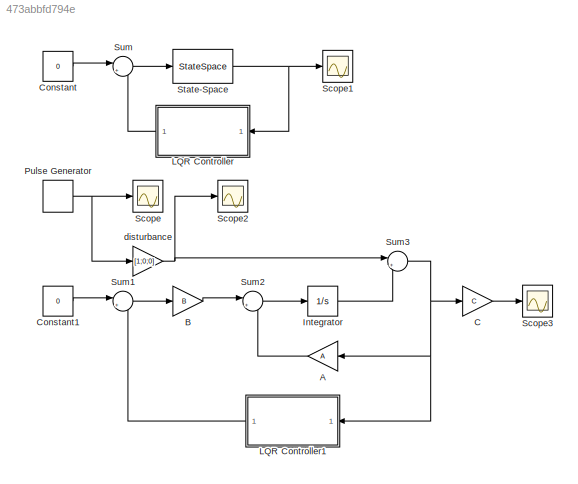
MODEL slx_473abbfd794e
KIND model
CONFIG AbsTol = auto
CONFIG FixedStep = auto
CONFIG MaxStep = auto
CONFIG MinStep = auto
CONFIG RelTol = 1e-3
CONFIG SampleTimeConstraint = Unconstrained
CONFIG Solver = ode45
CONFIG SolverMode = Auto
CONFIG SolverName = ode45
CONFIG StartTime = 0.0
CONFIG StopTime = 10.0
BLOCK [Gain] A
  Gain = A
  Multiplication = Matrix(K*u) (u vector)
  OutDataTypeStr = Inherit: Inherit via internal rule
  ParamDataTypeStr = Inherit: Inherit via internal rule
  SaturateOnIntegerOverflow = off
BLOCK [Gain] B
  Gain = B
  Multiplication = Matrix(K*u)
  OutDataTypeStr = Inherit: Inherit via internal rule
  ParamDataTypeStr = Inherit: Inherit via internal rule
  SaturateOnIntegerOverflow = off
BLOCK [Gain] C
  Gain = C
  Multiplication = Matrix(K*u)
  OutDataTypeStr = Inherit: Inherit via internal rule
  ParamDataTypeStr = Inherit: Inherit via internal rule
  SaturateOnIntegerOverflow = off
BLOCK [Constant] Constant
  Value = 0
BLOCK [Constant] Constant1
  Value = 0
BLOCK [Integrator] Integrator
  Ports = [1, 1]
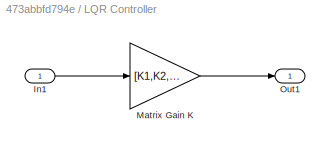
BLOCK [SubSystem] LQR Controller
  Ports = [1, 1]
  RequestExecContextInheritance = off
BLOCK [Inport] LQR Controller/In1
  IconDisplay = Port number
BLOCK [Gain] LQR Controller/Matrix Gain K
  Gain = [K1,K2,K3]
  Multiplication = Matrix(K*u)
  OutDataTypeStr = Inherit: Inherit via internal rule
  ParamDataTypeStr = Inherit: Inherit via internal rule
  SaturateOnIntegerOverflow = off
BLOCK [Outport] LQR Controller/Out1
  IconDisplay = Port number
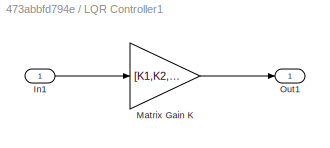
BLOCK [SubSystem] LQR Controller1
  Ports = [1, 1]
  RequestExecContextInheritance = off
BLOCK [Inport] LQR Controller1/In1
  IconDisplay = Port number
BLOCK [Gain] LQR Controller1/Matrix Gain K
  Gain = [K1,K2,K3]
  Multiplication = Matrix(K*u)
  OutDataTypeStr = Inherit: Inherit via internal rule
  ParamDataTypeStr = Inherit: Inherit via internal rule
  SaturateOnIntegerOverflow = off
BLOCK [Outport] LQR Controller1/Out1
  IconDisplay = Port number
BLOCK [DiscretePulseGenerator] Pulse Generator
  Amplitude = 0.1
  Period = 10
  PhaseDelay = 1
  Ports = [0, 1]
  PulseType = Time based
BLOCK [Scope] Scope
  Floating = off
  NumInputPorts = 1
  Ports = [1]
BLOCK [Scope] Scope1
  Floating = off
  LegendLocations = 0.77519      0.8221     0.17237    0.096754
  NumInputPorts = 1
  Ports = [1]
  SaveName = ScopeData1
  ShowLegends = on
BLOCK [Scope] Scope2
  Floating = off
  LegendLocations = 0.90678     0.86009    0.065154    0.076092
  NumInputPorts = 1
  Ports = [1]
  SaveName = ScopeData2
  ShowLegends = on
BLOCK [Scope] Scope3
  Floating = off
  LegendLocations = 0.91776     0.86009    0.054173    0.076092
  NumInputPorts = 1
  Ports = [1]
  SaveName = ScopeData3
  ShowLegends = on
BLOCK [StateSpace] State-Space
  A = A
  B = B
  C = C
  ContinuousStateAttributes = {'a', 'b', 'c'}
  D = D
  Ports = [1, 1]
  X0 = [0.1;0;0]
BLOCK [Sum] Sum
  IconShape = round
  InputSameDT = off
  Inputs = |+-
  OutDataTypeStr = Inherit: Inherit via internal rule
  Ports = [2, 1]
  SaturateOnIntegerOverflow = off
BLOCK [Sum] Sum1
  IconShape = round
  InputSameDT = off
  Inputs = |+-
  OutDataTypeStr = Inherit: Inherit via internal rule
  Ports = [2, 1]
  SaturateOnIntegerOverflow = off
BLOCK [Sum] Sum2
  IconShape = round
  InputSameDT = off
  Inputs = |++
  OutDataTypeStr = Inherit: Inherit via internal rule
  Ports = [2, 1]
  SaturateOnIntegerOverflow = off
BLOCK [Sum] Sum3
  IconShape = round
  InputSameDT = off
  Inputs = |++
  OutDataTypeStr = Inherit: Inherit via internal rule
  Ports = [2, 1]
  SaturateOnIntegerOverflow = off
BLOCK [Gain] disturbance
  Gain = [1;0;0]
  Multiplication = Matrix(K*u)
  OutDataTypeStr = Inherit: Inherit via internal rule
  ParamDataTypeStr = Inherit: Inherit via internal rule
  SaturateOnIntegerOverflow = off
LINE A:1 -> Sum2:2
LINE B:1 -> Sum2:1
LINE C:1 -> Scope3:1
LINE Constant1:1 -> Sum1:1
LINE Constant:1 -> Sum:1
LINE Integrator:1 -> Sum3:2
LINE LQR Controller/In1:1 -> LQR Controller/Matrix Gain K:1
LINE LQR Controller/Matrix Gain K:1 -> LQR Controller/Out1:1
LINE LQR Controller1/In1:1 -> LQR Controller1/Matrix Gain K:1
LINE LQR Controller1/Matrix Gain K:1 -> LQR Controller1/Out1:1
LINE LQR Controller1:1 -> Sum1:2
LINE LQR Controller:1 -> Sum:2
NET Pulse Generator:1 -> Scope:1, disturbance:1
NET State-Space:1 -> LQR Controller:1, Scope1:1
LINE Sum1:1 -> B:1
LINE Sum2:1 -> Integrator:1
NET Sum3:1 -> A:1, C:1, LQR Controller1:1
LINE Sum:1 -> State-Space:1
NET disturbance:1 -> Scope2:1, Sum3:1
note: NET lines group one-source signal fan-out (src -> all destinations, sorted); 1:1 wires keep LINE
